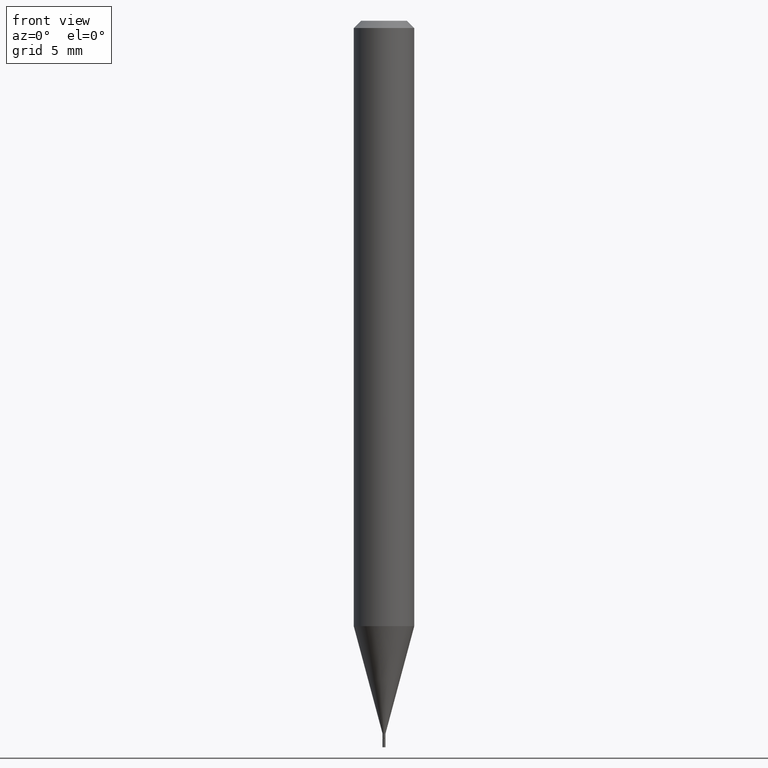
[diagram: clean part render]
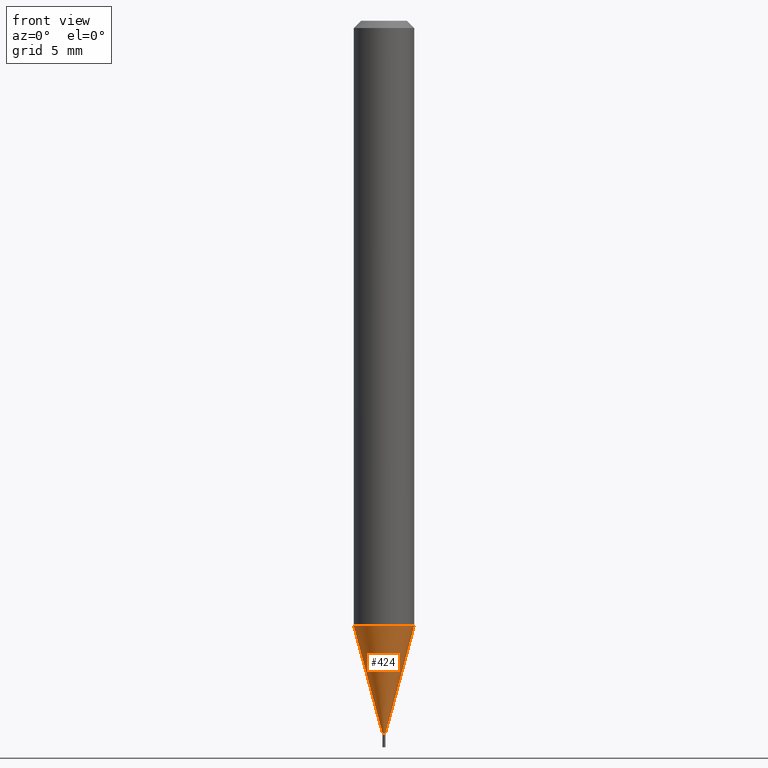
[diagram: same view with one face highlighted and labeled with its STEP entity id]
A machine part, front view. The second image highlights one B-rep face of the part: STEP entity #424.
In plain terms, the highlighted conical surface has half-angle 15 deg.
Its self-contained STEP definition (entity closure, byte-faithful):
#35 = AXIS2_PLACEMENT_3D ( 'NONE', #55, #377, #188 ) ;
#55 = CARTESIAN_POINT ( 'NONE',  ( 3.056696559640561437E-29, -4.364152578637758755E-15, -1.249942976949652174 ) ) ;
#64 = ORIENTED_EDGE ( 'NONE', *, *, #78, .F. ) ;
#71 = CARTESIAN_POINT ( 'NONE',  ( 0.002999999999999921566, -5.160409418810168864E-15, -1.471999999999999975 ) ) ;
#75 = CONICAL_SURFACE ( 'NONE', #255, 0.002999999999999921566, 0.2617993877991500740 ) ;
#78 = EDGE_CURVE ( 'NONE', #139, #265, #211, .T. ) ;
#87 = DIRECTION ( 'NONE',  ( -0.2588190451025213501, 5.211531920934551042E-15, 0.9659258262890682012 ) ) ;
#98 = CARTESIAN_POINT ( 'NONE',  ( 0.06250000000000000000, -4.800587745993150425E-15, -1.249942976949652174 ) ) ;
#99 = DIRECTION ( 'NONE',  ( 0.2588190451025213501, 1.565188264969621968E-15, 0.9659258262890682012 ) ) ;
#107 = EDGE_CURVE ( 'NONE', #278, #123, #200, .T. ) ;
#122 = CARTESIAN_POINT ( 'NONE',  ( 3.599730082704520905E-29, -5.139460530777110821E-15, -1.471999999999999975 ) ) ;
#123 = VERTEX_POINT ( 'NONE', #98 ) ;
#125 = DIRECTION ( 'NONE',  ( 1.000000000000000000, -6.982962677686191769E-15, 0.000000000000000000 ) ) ;
#139 = VERTEX_POINT ( 'NONE', #386 ) ;
#157 = DIRECTION ( 'NONE',  ( -2.445468806185136597E-29, 3.491481338843145583E-15, 1.000000000000000000 ) ) ;
#172 = ORIENTED_EDGE ( 'NONE', *, *, #333, .F. ) ;
#177 = CARTESIAN_POINT ( 'NONE',  ( -0.06250000000000000000, -3.920063368787695350E-15, -1.249942976949652174 ) ) ;
#184 = EDGE_CURVE ( 'NONE', #139, #278, #356, .T. ) ;
#188 = DIRECTION ( 'NONE',  ( 1.000000000000000000, -6.982962677686270655E-15, 0.000000000000000000 ) ) ;
#200 = LINE ( 'NONE', #421, #284 ) ;
#211 = LINE ( 'NONE', #288, #353 ) ;
#228 = DIRECTION ( 'NONE',  ( 1.000000000000000000, -6.982962677686191769E-15, 0.000000000000000000 ) ) ;
#233 = ORIENTED_EDGE ( 'NONE', *, *, #184, .T. ) ;
#239 = DIRECTION ( 'NONE',  ( -2.445468806185136597E-29, 3.491481338843145583E-15, 1.000000000000000000 ) ) ;
#255 = AXIS2_PLACEMENT_3D ( 'NONE', #122, #157, #125 ) ;
#265 = VERTEX_POINT ( 'NONE', #177 ) ;
#278 = VERTEX_POINT ( 'NONE', #71 ) ;
#284 = VECTOR ( 'NONE', #99, 39.37007874015747433 ) ;
#288 = CARTESIAN_POINT ( 'NONE',  ( -0.002999999999999921566, -5.118144248704308586E-15, -1.471999999999999975 ) ) ;
#301 = ORIENTED_EDGE ( 'NONE', *, *, #107, .T. ) ;
#319 = AXIS2_PLACEMENT_3D ( 'NONE', #407, #239, #228 ) ;
#333 = EDGE_CURVE ( 'NONE', #265, #123, #412, .T. ) ;
#348 = EDGE_LOOP ( 'NONE', ( #64, #233, #301, #172 ) ) ;
#353 = VECTOR ( 'NONE', #87, 39.37007874015747433 ) ;
#356 = CIRCLE ( 'NONE', #319, 0.002999999999999921566 ) ;
#373 = FACE_OUTER_BOUND ( 'NONE', #348, .T. ) ;
#377 = DIRECTION ( 'NONE',  ( -2.445468806185136597E-29, 3.491481338843145583E-15, 1.000000000000000000 ) ) ;
#386 = CARTESIAN_POINT ( 'NONE',  ( -0.002999999999999921566, -4.519103808746002757E-15, -1.471999999999999975 ) ) ;
#407 = CARTESIAN_POINT ( 'NONE',  ( 3.599730082704520905E-29, -5.139460530777110821E-15, -1.471999999999999975 ) ) ;
#412 = CIRCLE ( 'NONE', #35, 0.06250000000000000000 ) ;
#421 = CARTESIAN_POINT ( 'NONE',  ( 0.002999999999999921566, -5.160409418810168864E-15, -1.471999999999999975 ) ) ;
#424 = ADVANCED_FACE ( 'NONE', ( #373 ), #75, .T. ) ;